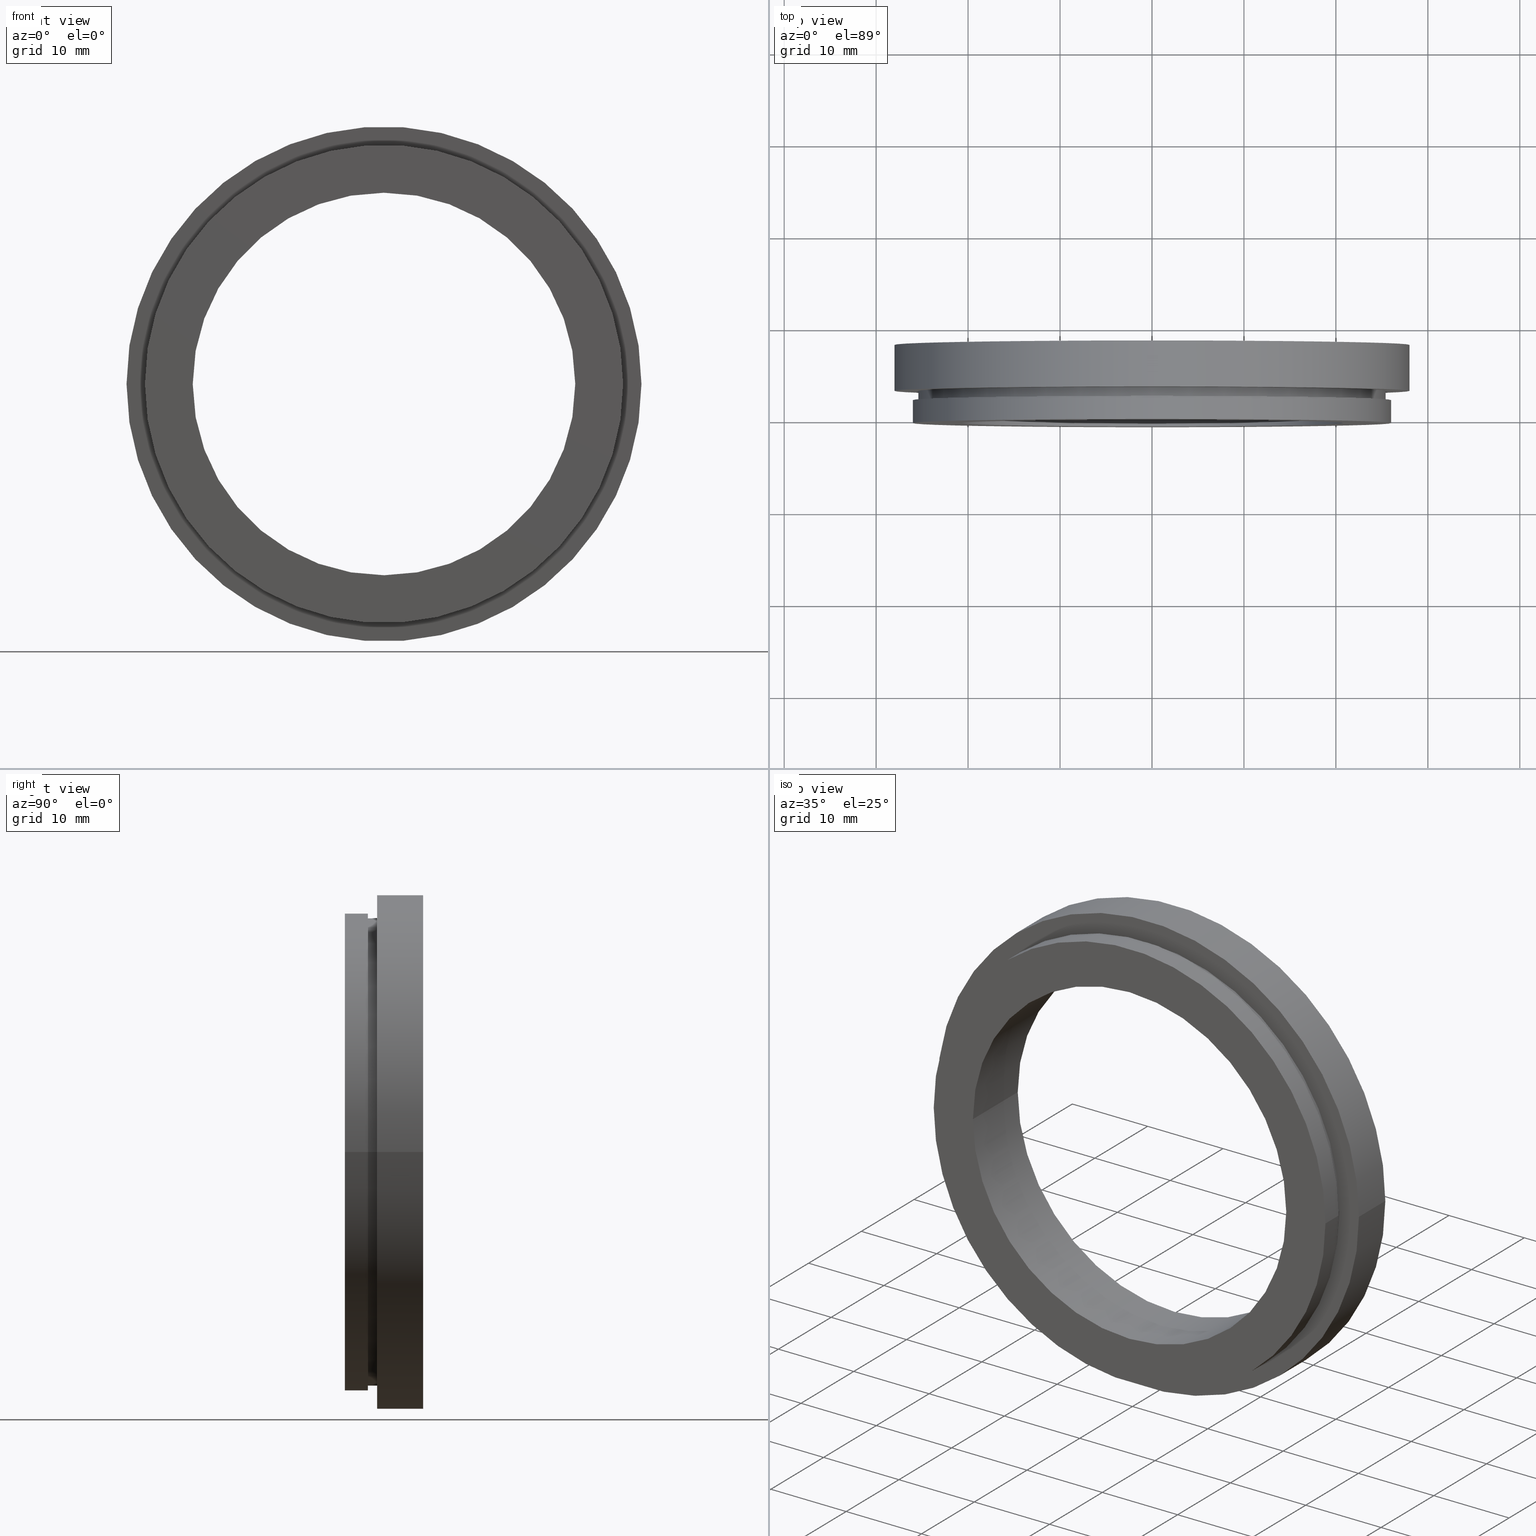
[diagram: canonical four-view strip — front | top / right | iso, engineering-drawing reading convention]
A machine part, canonical four-view strip (front | top / right | iso — engineering-drawing reading convention). The complete STEP part file that produces these views, byte-faithful:
ISO-10303-21;
HEADER;
FILE_DESCRIPTION (( 'STEP AP214' ),
    '1' );
FILE_NAME ('504094.STEP',
    '2019-10-09T01:46:50',
    ( '' ),
    ( '' ),
    'SwSTEP 2.0',
    'SolidWorks 2016',
    '' );
FILE_SCHEMA (( 'AUTOMOTIVE_DESIGN' ));
ENDSEC;

DATA;
#1 = DIRECTION ( 'NONE',  ( -1.000000000000000000, -1.224646799147351000E-016, 0.0000000000000000000 ) ) ;
#2 = CARTESIAN_POINT ( 'NONE',  ( 0.0000000000000000000, 16.88601823708207700, 0.0000000000000000000 ) ) ;
#3 = AXIS2_PLACEMENT_3D ( 'NONE', #124, #378, #228 ) ;
#4 = CARTESIAN_POINT ( 'NONE',  ( -25.99999999999999600, 16.88601823708207300, 0.0000000000000000000 ) ) ;
#5 = ORIENTED_EDGE ( 'NONE', *, *, #10, .F. ) ;
#6 = DIRECTION ( 'NONE',  ( -1.000000000000000000, -1.365923996832131600E-016, 0.0000000000000000000 ) ) ;
#7 = PRODUCT_DEFINITION_FORMATION_WITH_SPECIFIED_SOURCE ( '�κ�', '', #244, .NOT_KNOWN. ) ;
#8 = FILL_AREA_STYLE ('',( #180 ) ) ;
#9 = CARTESIAN_POINT ( 'NONE',  ( 0.0000000000000000000, 16.88601823708207700, 0.0000000000000000000 ) ) ;
#10 = EDGE_CURVE ( 'NONE', #100, #170, #419, .T. ) ;
#11 = CIRCLE ( 'NONE', #91, 25.39999999999999500 ) ;
#12 = FACE_OUTER_BOUND ( 'NONE', #257, .T. ) ;
#13 = FACE_OUTER_BOUND ( 'NONE', #94, .T. ) ;
#14 = CARTESIAN_POINT ( 'NONE',  ( -20.80000000000000100, -0.5454644111196710300, 0.0000000000000000000 ) ) ;
#15 = ORIENTED_EDGE ( 'NONE', *, *, #132, .T. ) ;
#16 = CARTESIAN_POINT ( 'NONE',  ( -25.39999999999999900, 16.88601823708207300, 0.0000000000000000000 ) ) ;
#17 = ADVANCED_FACE ( 'NONE', ( #239, #27 ), #152, .F. ) ;
#18 = ORIENTED_EDGE ( 'NONE', *, *, #326, .T. ) ;
#19 = EDGE_CURVE ( 'NONE', #245, #215, #397, .T. ) ;
#20 = FACE_OUTER_BOUND ( 'NONE', #190, .T. ) ;
#21 = CARTESIAN_POINT ( 'NONE',  ( 1.828579243164447600E-015, 1.954535588880333700, 0.0000000000000000000 ) ) ;
#22 = DIRECTION ( 'NONE',  ( -1.224646799147351000E-016, 1.000000000000000000, -0.0000000000000000000 ) ) ;
#23 = COLOUR_RGB ( '',1.000000000000000000, 1.000000000000000000, 1.000000000000000000 ) ;
#24 = DIRECTION ( 'NONE',  ( -1.224646799147351000E-016, 1.000000000000000000, -0.0000000000000000000 ) ) ;
#25 = DIRECTION ( 'NONE',  ( -1.000000000000000000, -1.334402673828313300E-016, 0.0000000000000000000 ) ) ;
#26 = AXIS2_PLACEMENT_3D ( 'NONE', #61, #223, #315 ) ;
#27 = FACE_OUTER_BOUND ( 'NONE', #302, .T. ) ;
#28 = SURFACE_STYLE_FILL_AREA ( #216 ) ;
#29 = FACE_OUTER_BOUND ( 'NONE', #105, .T. ) ;
#30 = ORIENTED_EDGE ( 'NONE', *, *, #35, .T. ) ;
#31 = PRODUCT_DEFINITION_SHAPE ( 'NONE', 'NONE',  #347 ) ;
#32 = PLANE ( 'NONE',  #395 ) ;
#33 = AXIS2_PLACEMENT_3D ( 'NONE', #324, #289, #322 ) ;
#34 = DIRECTION ( 'NONE',  ( -1.224646799147351000E-016, 1.000000000000000000, -0.0000000000000000000 ) ) ;
#35 = EDGE_CURVE ( 'NONE', #170, #189, #361, .T. ) ;
#36 = CARTESIAN_POINT ( 'NONE',  ( 1.706114563249712100E-015, 2.954535588880334600, 0.0000000000000000000 ) ) ;
#37 = PRESENTATION_LAYER_ASSIGNMENT (  '', '', ( #117 ) ) ;
#38 = ORIENTED_EDGE ( 'NONE', *, *, #264, .F. ) ;
#39 = FILL_AREA_STYLE ('',( #368 ) ) ;
#40 = COLOUR_RGB ( '',1.000000000000000000, 1.000000000000000000, 1.000000000000000000 ) ;
#41 = DIRECTION ( 'NONE',  ( -1.224646799147351000E-016, 1.000000000000000000, -0.0000000000000000000 ) ) ;
#42 = STYLED_ITEM ( 'NONE', ( #83 ), #275 ) ;
#43 = SURFACE_STYLE_USAGE ( .BOTH. , #243 ) ;
#44 = UNCERTAINTY_MEASURE_WITH_UNIT (LENGTH_MEASURE( 1.000000000000000100E-005 ), #220, 'distance_accuracy_value', 'NONE');
#45 = CIRCLE ( 'NONE', #119, 25.99999999999999600 ) ;
#46 = CARTESIAN_POINT ( 'NONE',  ( -25.99999999999999300, -0.5454644111196717000, 0.0000000000000000000 ) ) ;
#47 = VERTEX_POINT ( 'NONE', #191 ) ;
#48 = ADVANCED_FACE ( 'NONE', ( #12 ), #271, .T. ) ;
#49 = DIRECTION ( 'NONE',  ( -1.224646799147351000E-016, 1.000000000000000000, -0.0000000000000000000 ) ) ;
#50 =( GEOMETRIC_REPRESENTATION_CONTEXT ( 3 ) GLOBAL_UNCERTAINTY_ASSIGNED_CONTEXT ( ( #158 ) ) GLOBAL_UNIT_ASSIGNED_CONTEXT ( ( #398, #175, #365 ) ) REPRESENTATION_CONTEXT ( 'NONE', 'WORKASPACE' ) );
#51 = EDGE_LOOP ( 'NONE', ( #149, #413, #120, #258 ) ) ;
#52 = EDGE_CURVE ( 'NONE', #115, #164, #133, .T. ) ;
#53 = ORIENTED_EDGE ( 'NONE', *, *, #218, .F. ) ;
#54 = CARTESIAN_POINT ( 'NONE',  ( 0.0000000000000000000, 0.0000000000000000000, 0.0000000000000000000 ) ) ;
#55 = AXIS2_PLACEMENT_3D ( 'NONE', #2, #206, #401 ) ;
#56 = DIRECTION ( 'NONE',  ( 1.000000000000000000, 1.224646799147351000E-016, 0.0000000000000000000 ) ) ;
#57 = CIRCLE ( 'NONE', #187, 20.80000000000000400 ) ;
#58 = DIRECTION ( 'NONE',  ( -1.224646799147351000E-016, 1.000000000000000000, -0.0000000000000000000 ) ) ;
#59 = PRESENTATION_LAYER_ASSIGNMENT (  '', '', ( #392 ) ) ;
#60 = DIRECTION ( 'NONE',  ( -1.000000000000000000, -1.195183497228115300E-016, 0.0000000000000000000 ) ) ;
#61 = CARTESIAN_POINT ( 'NONE',  ( 20.80000000000000400, -0.5454644111196637100, 0.0000000000000000000 ) ) ;
#62 = PLANE ( 'NONE',  #334 ) ;
#63 = EDGE_LOOP ( 'NONE', ( #267, #15 ) ) ;
#64 = ORIENTED_EDGE ( 'NONE', *, *, #396, .F. ) ;
#65 = EDGE_CURVE ( 'NONE', #215, #245, #163, .T. ) ;
#66 = MECHANICAL_DESIGN_GEOMETRIC_PRESENTATION_REPRESENTATION (  '', ( #238 ), #50 ) ;
#67 = VECTOR ( 'NONE', #177, 1000.000000000000000 ) ;
#68 = FILL_AREA_STYLE_COLOUR ( '', #319 ) ;
#69 = CIRCLE ( 'NONE', #281, 25.39999999999999900 ) ;
#70 = ORIENTED_EDGE ( 'NONE', *, *, #65, .T. ) ;
#71 = CARTESIAN_POINT ( 'NONE',  ( 25.39999999999999900, 2.954535588880337700, 3.110602869834276900E-015 ) ) ;
#72 = STYLED_ITEM ( 'NONE', ( #171 ), #407 ) ;
#73 = EDGE_LOOP ( 'NONE', ( #121, #336, #399, #332 ) ) ;
#74 = CARTESIAN_POINT ( 'NONE',  ( 1.093791163676036800E-015, 7.954535588880335500, 0.0000000000000000000 ) ) ;
#75 = ORIENTED_EDGE ( 'NONE', *, *, #147, .F. ) ;
#76 = SURFACE_SIDE_STYLE ('',( #362 ) ) ;
#77 = EDGE_CURVE ( 'NONE', #434, #47, #233, .T. ) ;
#78 = CARTESIAN_POINT ( 'NONE',  ( 1.706114563249712100E-015, 2.954535588880334600, 0.0000000000000000000 ) ) ;
#79 = UNCERTAINTY_MEASURE_WITH_UNIT (LENGTH_MEASURE( 1.000000000000000100E-005 ), #375, 'distance_accuracy_value', 'NONE');
#80 = ORIENTED_EDGE ( 'NONE', *, *, #414, .F. ) ;
#81 = ORIENTED_EDGE ( 'NONE', *, *, #197, .F. ) ;
#82 =( NAMED_UNIT ( * ) SI_UNIT ( $, .STERADIAN. ) SOLID_ANGLE_UNIT ( ) );
#83 = PRESENTATION_STYLE_ASSIGNMENT (( #305 ) ) ;
#84 = SURFACE_SIDE_STYLE ('',( #195 ) ) ;
#85 = AXIS2_PLACEMENT_3D ( 'NONE', #424, #24, #139 ) ;
#86 = AXIS2_PLACEMENT_3D ( 'NONE', #263, #425, #143 ) ;
#87 =( NAMED_UNIT ( * ) PLANE_ANGLE_UNIT ( ) SI_UNIT ( $, .RADIAN. ) );
#88 = VECTOR ( 'NONE', #380, 1000.000000000000000 ) ;
#89 = ADVANCED_FACE ( 'NONE', ( #388, #373 ), #230, .F. ) ;
#90 = APPLICATION_PROTOCOL_DEFINITION ( 'draft international standard', 'automotive_design', 1998, #411 ) ;
#91 = AXIS2_PLACEMENT_3D ( 'NONE', #155, #49, #343 ) ;
#92 = CARTESIAN_POINT ( 'NONE',  ( 2.134740942951285500E-015, -0.5454644111196684800, 0.0000000000000000000 ) ) ;
#93 = DIRECTION ( 'NONE',  ( -1.000000000000000000, -1.239088197126290600E-016, 0.0000000000000000000 ) ) ;
#94 = EDGE_LOOP ( 'NONE', ( #341, #262, #227, #75 ) ) ;
#95 = EDGE_CURVE ( 'NONE', #96, #164, #311, .T. ) ;
#96 = VERTEX_POINT ( 'NONE', #321 ) ;
#97 = CARTESIAN_POINT ( 'NONE',  ( 0.0000000000000000000, 16.88601823708207700, 0.0000000000000000000 ) ) ;
#98 = DIRECTION ( 'NONE',  ( -1.224646799147351000E-016, 1.000000000000000000, -0.0000000000000000000 ) ) ;
#99 = FACE_OUTER_BOUND ( 'NONE', #73, .T. ) ;
#100 = VERTEX_POINT ( 'NONE', #193 ) ;
#101 =( GEOMETRIC_REPRESENTATION_CONTEXT ( 3 ) GLOBAL_UNCERTAINTY_ASSIGNED_CONTEXT ( ( #44 ) ) GLOBAL_UNIT_ASSIGNED_CONTEXT ( ( #220, #252, #279 ) ) REPRESENTATION_CONTEXT ( 'NONE', 'WORKASPACE' ) );
#102 = DIRECTION ( 'NONE',  ( -1.000000000000000000, -1.167602339599774200E-016, 0.0000000000000000000 ) ) ;
#103 = DIRECTION ( 'NONE',  ( -1.000000000000000000, -1.195183497228115300E-016, 0.0000000000000000000 ) ) ;
#104 = ORIENTED_EDGE ( 'NONE', *, *, #95, .F. ) ;
#105 = EDGE_LOOP ( 'NONE', ( #70, #207 ) ) ;
#106 = PRODUCT_RELATED_PRODUCT_CATEGORY ( 'part', '', ( #244 ) ) ;
#107 = CARTESIAN_POINT ( 'NONE',  ( 2.134740942951285500E-015, -0.5454644111196684800, 0.0000000000000000000 ) ) ;
#108 = EDGE_CURVE ( 'NONE', #325, #245, #285, .T. ) ;
#109 = CYLINDRICAL_SURFACE ( 'NONE', #253, 25.39999999999999900 ) ;
#110 = FILL_AREA_STYLE ('',( #68 ) ) ;
#111 = VERTEX_POINT ( 'NONE', #125 ) ;
#112 = ORIENTED_EDGE ( 'NONE', *, *, #153, .T. ) ;
#113 = CARTESIAN_POINT ( 'NONE',  ( 28.00000000000001100, 2.954535588880338200, 3.429011037612590100E-015 ) ) ;
#114 = DIRECTION ( 'NONE',  ( -1.224646799147351000E-016, 1.000000000000000000, -0.0000000000000000000 ) ) ;
#115 = VERTEX_POINT ( 'NONE', #418 ) ;
#116 = FILL_AREA_STYLE_COLOUR ( '', #432 ) ;
#117 = STYLED_ITEM ( 'NONE', ( #316 ), #318 ) ;
#118 = COLOUR_RGB ( '',1.000000000000000000, 1.000000000000000000, 1.000000000000000000 ) ;
#119 = AXIS2_PLACEMENT_3D ( 'NONE', #337, #232, #102 ) ;
#120 = ORIENTED_EDGE ( 'NONE', *, *, #129, .T. ) ;
#121 = ORIENTED_EDGE ( 'NONE', *, *, #108, .F. ) ;
#122 = LINE ( 'NONE', #386, #431 ) ;
#123 =( GEOMETRIC_REPRESENTATION_CONTEXT ( 3 ) GLOBAL_UNCERTAINTY_ASSIGNED_CONTEXT ( ( #198 ) ) GLOBAL_UNIT_ASSIGNED_CONTEXT ( ( #363, #211, #82 ) ) REPRESENTATION_CONTEXT ( 'NONE', 'WORKASPACE' ) );
#124 = CARTESIAN_POINT ( 'NONE',  ( 1.093791163676037000E-015, 7.954535588880333700, 0.0000000000000000000 ) ) ;
#125 = CARTESIAN_POINT ( 'NONE',  ( 20.80000000000000400, 7.954535588880337300, 2.547265342226494900E-015 ) ) ;
#126 = VECTOR ( 'NONE', #137, 1000.000000000000000 ) ;
#127 = EDGE_LOOP ( 'NONE', ( #112, #301, #104, #194 ) ) ;
#128 = FACE_OUTER_BOUND ( 'NONE', #412, .T. ) ;
#129 = EDGE_CURVE ( 'NONE', #111, #47, #405, .T. ) ;
#130 = DIRECTION ( 'NONE',  ( 1.000000000000000000, 1.224646799147351000E-016, 0.0000000000000000000 ) ) ;
#131 = CARTESIAN_POINT ( 'NONE',  ( -25.39999999999999900, 2.954535588880331500, 0.0000000000000000000 ) ) ;
#132 = EDGE_CURVE ( 'NONE', #240, #189, #214, .T. ) ;
#133 = LINE ( 'NONE', #350, #88 ) ;
#134 = AXIS2_PLACEMENT_3D ( 'NONE', #283, #250, #282 ) ;
#135 = CIRCLE ( 'NONE', #86, 20.80000000000000400 ) ;
#136 = FACE_OUTER_BOUND ( 'NONE', #209, .T. ) ;
#137 = DIRECTION ( 'NONE',  ( -1.224646799147351000E-016, 1.000000000000000000, -0.0000000000000000000 ) ) ;
#138 = MECHANICAL_DESIGN_GEOMETRIC_PRESENTATION_REPRESENTATION (  '', ( #42 ), #123 ) ;
#139 = DIRECTION ( 'NONE',  ( -1.000000000000000000, -1.668003342285391100E-016, 0.0000000000000000000 ) ) ;
#140 = VECTOR ( 'NONE', #22, 1000.000000000000000 ) ;
#141 = DIRECTION ( 'NONE',  ( -1.224646799147351000E-016, 1.000000000000000000, -0.0000000000000000000 ) ) ;
#142 = AXIS2_PLACEMENT_3D ( 'NONE', #107, #34, #268 ) ;
#143 = DIRECTION ( 'NONE',  ( -1.000000000000000000, -1.198877402267624800E-016, 0.0000000000000000000 ) ) ;
#144 = CIRCLE ( 'NONE', #349, 25.99999999999999600 ) ;
#145 = DIRECTION ( 'NONE',  ( -1.224646799147351000E-016, 1.000000000000000000, -0.0000000000000000000 ) ) ;
#146 = DIRECTION ( 'NONE',  ( -1.224646799147351000E-016, 1.000000000000000000, -0.0000000000000000000 ) ) ;
#147 = EDGE_CURVE ( 'NONE', #164, #96, #45, .T. ) ;
#148 =( NAMED_UNIT ( * ) SI_UNIT ( $, .STERADIAN. ) SOLID_ANGLE_UNIT ( ) );
#149 = ORIENTED_EDGE ( 'NONE', *, *, #159, .F. ) ;
#150 = ORIENTED_EDGE ( 'NONE', *, *, #153, .F. ) ;
#151 = PRODUCT_CONTEXT ( 'NONE', #411, 'mechanical' ) ;
#152 = PLANE ( 'NONE',  #369 ) ;
#153 = EDGE_CURVE ( 'NONE', #381, #115, #144, .T. ) ;
#154 = CYLINDRICAL_SURFACE ( 'NONE', #85, 20.80000000000000400 ) ;
#155 = CARTESIAN_POINT ( 'NONE',  ( 1.828579243164447600E-015, 1.954535588880333700, 0.0000000000000000000 ) ) ;
#156 = CARTESIAN_POINT ( 'NONE',  ( 28.00000000000000400, 16.88601823708208000, 3.429011037612589700E-015 ) ) ;
#157 = CARTESIAN_POINT ( 'NONE',  ( 26.00000000000000000, 1.954535588880336600, 3.184081677783117800E-015 ) ) ;
#158 = UNCERTAINTY_MEASURE_WITH_UNIT (LENGTH_MEASURE( 1.000000000000000100E-005 ), #398, 'distance_accuracy_value', 'NONE');
#159 = EDGE_CURVE ( 'NONE', #406, #434, #379, .T. ) ;
#160 = FACE_OUTER_BOUND ( 'NONE', #127, .T. ) ;
#161 = CARTESIAN_POINT ( 'NONE',  ( 1.706114563249712100E-015, 2.954535588880334600, 0.0000000000000000000 ) ) ;
#162 = DIRECTION ( 'NONE',  ( -1.224646799147351000E-016, 1.000000000000000000, -0.0000000000000000000 ) ) ;
#163 = CIRCLE ( 'NONE', #3, 28.00000000000000000 ) ;
#164 = VERTEX_POINT ( 'NONE', #157 ) ;
#165 = CARTESIAN_POINT ( 'NONE',  ( 1.706114563249712100E-015, 2.954535588880334600, 0.0000000000000000000 ) ) ;
#166 = UNCERTAINTY_MEASURE_WITH_UNIT (LENGTH_MEASURE( 1.000000000000000100E-005 ), #181, 'distance_accuracy_value', 'NONE');
#167 = DIRECTION ( 'NONE',  ( 1.224646799147351000E-016, -1.000000000000000000, 0.0000000000000000000 ) ) ;
#168 =( NAMED_UNIT ( * ) PLANE_ANGLE_UNIT ( ) SI_UNIT ( $, .RADIAN. ) );
#169 = VERTEX_POINT ( 'NONE', #384 ) ;
#170 = VERTEX_POINT ( 'NONE', #200 ) ;
#171 = PRESENTATION_STYLE_ASSIGNMENT (( #43 ) ) ;
#172 = EDGE_LOOP ( 'NONE', ( #80, #5 ) ) ;
#173 = DIRECTION ( 'NONE',  ( -1.224646799147351000E-016, 1.000000000000000000, -0.0000000000000000000 ) ) ;
#174 = STYLED_ITEM ( 'NONE', ( #226 ), #256 ) ;
#175 =( NAMED_UNIT ( * ) PLANE_ANGLE_UNIT ( ) SI_UNIT ( $, .RADIAN. ) );
#176 = PRESENTATION_STYLE_ASSIGNMENT (( #346 ) ) ;
#177 = DIRECTION ( 'NONE',  ( -1.224646799147351000E-016, 1.000000000000000000, -0.0000000000000000000 ) ) ;
#178 = FILL_AREA_STYLE ('',( #241 ) ) ;
#179 = EDGE_LOOP ( 'NONE', ( #251, #327 ) ) ;
#180 = FILL_AREA_STYLE_COLOUR ( '', #278 ) ;
#181 =( LENGTH_UNIT ( ) NAMED_UNIT ( * ) SI_UNIT ( .MILLI., .METRE. ) );
#182 = VECTOR ( 'NONE', #145, 1000.000000000000000 ) ;
#183 = CARTESIAN_POINT ( 'NONE',  ( 0.0000000000000000000, 16.88601823708207700, 0.0000000000000000000 ) ) ;
#184 = ORIENTED_EDGE ( 'NONE', *, *, #247, .T. ) ;
#185 =( NAMED_UNIT ( * ) PLANE_ANGLE_UNIT ( ) SI_UNIT ( $, .RADIAN. ) );
#186 = CARTESIAN_POINT ( 'NONE',  ( 25.39999999999999900, 1.954535588880337100, 0.0000000000000000000 ) ) ;
#187 = AXIS2_PLACEMENT_3D ( 'NONE', #74, #390, #299 ) ;
#188 = CARTESIAN_POINT ( 'NONE',  ( -20.80000000000000400, 16.88601823708207300, 0.0000000000000000000 ) ) ;
#189 = VERTEX_POINT ( 'NONE', #131 ) ;
#190 = EDGE_LOOP ( 'NONE', ( #64, #359, #357, #184 ) ) ;
#191 = CARTESIAN_POINT ( 'NONE',  ( -20.80000000000000400, 7.954535588880333700, 0.0000000000000000000 ) ) ;
#192 = ADVANCED_FACE ( 'NONE', ( #136, #394 ), #62, .F. ) ;
#193 = CARTESIAN_POINT ( 'NONE',  ( 25.39999999999999900, 1.954535588880336600, 3.110602869834276900E-015 ) ) ;
#194 = ORIENTED_EDGE ( 'NONE', *, *, #300, .F. ) ;
#195 = SURFACE_STYLE_FILL_AREA ( #8 ) ;
#196 = FILL_AREA_STYLE_COLOUR ( '', #40 ) ;
#197 = EDGE_CURVE ( 'NONE', #189, #240, #69, .T. ) ;
#198 = UNCERTAINTY_MEASURE_WITH_UNIT (LENGTH_MEASURE( 1.000000000000000100E-005 ), #363, 'distance_accuracy_value', 'NONE');
#199 = CARTESIAN_POINT ( 'NONE',  ( 0.0000000000000000000, 16.88601823708207700, 0.0000000000000000000 ) ) ;
#200 = CARTESIAN_POINT ( 'NONE',  ( -25.39999999999999100, 1.954535588880330600, 0.0000000000000000000 ) ) ;
#201 = ORIENTED_EDGE ( 'NONE', *, *, #108, .T. ) ;
#202 = CARTESIAN_POINT ( 'NONE',  ( 28.00000000000000000, 7.954535588880337300, 3.429011037612589300E-015 ) ) ;
#203 = ORIENTED_EDGE ( 'NONE', *, *, #387, .F. ) ;
#204 = DIRECTION ( 'NONE',  ( -1.224646799147351000E-016, 1.000000000000000000, -0.0000000000000000000 ) ) ;
#205 = LINE ( 'NONE', #338, #182 ) ;
#206 = DIRECTION ( 'NONE',  ( -1.224646799147351000E-016, 1.000000000000000000, -0.0000000000000000000 ) ) ;
#207 = ORIENTED_EDGE ( 'NONE', *, *, #19, .T. ) ;
#208 = SURFACE_STYLE_USAGE ( .BOTH. , #76 ) ;
#209 = EDGE_LOOP ( 'NONE', ( #272, #203 ) ) ;
#210 =( LENGTH_UNIT ( ) NAMED_UNIT ( * ) SI_UNIT ( .MILLI., .METRE. ) );
#211 =( NAMED_UNIT ( * ) PLANE_ANGLE_UNIT ( ) SI_UNIT ( $, .RADIAN. ) );
#212 = CYLINDRICAL_SURFACE ( 'NONE', #366, 20.80000000000000400 ) ;
#213 = DIRECTION ( 'NONE',  ( -1.224646799147351000E-016, 1.000000000000000000, -0.0000000000000000000 ) ) ;
#214 = CIRCLE ( 'NONE', #333, 25.39999999999999900 ) ;
#215 = VERTEX_POINT ( 'NONE', #329 ) ;
#216 = FILL_AREA_STYLE ('',( #116 ) ) ;
#217 =( GEOMETRIC_REPRESENTATION_CONTEXT ( 3 ) GLOBAL_UNCERTAINTY_ASSIGNED_CONTEXT ( ( #166 ) ) GLOBAL_UNIT_ASSIGNED_CONTEXT ( ( #181, #185, #148 ) ) REPRESENTATION_CONTEXT ( 'NONE', 'WORKASPACE' ) );
#218 = EDGE_CURVE ( 'NONE', #169, #215, #296, .T. ) ;
#219 = APPLICATION_CONTEXT ( 'automotive_design' ) ;
#220 =( LENGTH_UNIT ( ) NAMED_UNIT ( * ) SI_UNIT ( .MILLI., .METRE. ) );
#221 = EDGE_LOOP ( 'NONE', ( #430, #364 ) ) ;
#222 = DIRECTION ( 'NONE',  ( -1.000000000000000000, -1.195183497228115300E-016, 0.0000000000000000000 ) ) ;
#223 = DIRECTION ( 'NONE',  ( -1.224646799147351000E-016, 1.000000000000000000, 0.0000000000000000000 ) ) ;
#224 = CIRCLE ( 'NONE', #330, 25.99999999999999600 ) ;
#225 = DIRECTION ( 'NONE',  ( -1.224646799147351000E-016, 1.000000000000000000, -0.0000000000000000000 ) ) ;
#226 = PRESENTATION_STYLE_ASSIGNMENT (( #335 ) ) ;
#227 = ORIENTED_EDGE ( 'NONE', *, *, #300, .T. ) ;
#228 = DIRECTION ( 'NONE',  ( -1.000000000000000000, -1.239088197126290800E-016, 0.0000000000000000000 ) ) ;
#229 = PRODUCT_DEFINITION_CONTEXT ( 'detailed design', #219, 'design' ) ;
#230 = PLANE ( 'NONE',  #26 ) ;
#231 = UNCERTAINTY_MEASURE_WITH_UNIT (LENGTH_MEASURE( 1.000000000000000100E-005 ), #210, 'distance_accuracy_value', 'NONE');
#232 = DIRECTION ( 'NONE',  ( -1.224646799147351000E-016, 1.000000000000000000, -0.0000000000000000000 ) ) ;
#233 = LINE ( 'NONE', #188, #140 ) ;
#234 = EDGE_LOOP ( 'NONE', ( #150, #351 ) ) ;
#235 = DIRECTION ( 'NONE',  ( -1.224646799147351000E-016, 1.000000000000000000, -0.0000000000000000000 ) ) ;
#236 = FACE_BOUND ( 'NONE', #221, .T. ) ;
#237 = ORIENTED_EDGE ( 'NONE', *, *, #414, .T. ) ;
#238 = STYLED_ITEM ( 'NONE', ( #353 ), #312 ) ;
#239 = FACE_BOUND ( 'NONE', #172, .T. ) ;
#240 = VERTEX_POINT ( 'NONE', #71 ) ;
#241 = FILL_AREA_STYLE_COLOUR ( '', #118 ) ;
#242 = AXIS2_PLACEMENT_3D ( 'NONE', #342, #213, #6 ) ;
#243 = SURFACE_SIDE_STYLE ('',( #393 ) ) ;
#244 = PRODUCT ( '504094', '504094', '', ( #151 ) ) ;
#245 = VERTEX_POINT ( 'NONE', #202 ) ;
#246 =( NAMED_UNIT ( * ) PLANE_ANGLE_UNIT ( ) SI_UNIT ( $, .RADIAN. ) );
#247 = EDGE_CURVE ( 'NONE', #47, #111, #57, .T. ) ;
#248 = ORIENTED_EDGE ( 'NONE', *, *, #95, .T. ) ;
#249 = ADVANCED_FACE ( 'NONE', ( #236, #29 ), #32, .F. ) ;
#250 = DIRECTION ( 'NONE',  ( -1.224646799147351000E-016, 1.000000000000000000, -0.0000000000000000000 ) ) ;
#251 = ORIENTED_EDGE ( 'NONE', *, *, #266, .T. ) ;
#252 =( NAMED_UNIT ( * ) PLANE_ANGLE_UNIT ( ) SI_UNIT ( $, .RADIAN. ) );
#253 = AXIS2_PLACEMENT_3D ( 'NONE', #9, #141, #274 ) ;
#254 = DIRECTION ( 'NONE',  ( -1.000000000000000000, -1.209302423156908900E-016, 0.0000000000000000000 ) ) ;
#255 = DIRECTION ( 'NONE',  ( -1.224646799147351000E-016, 1.000000000000000000, -0.0000000000000000000 ) ) ;
#256 = ADVANCED_FACE ( 'NONE', ( #160 ), #367, .T. ) ;
#257 = EDGE_LOOP ( 'NONE', ( #18, #201, #286, #53 ) ) ;
#258 = ORIENTED_EDGE ( 'NONE', *, *, #77, .F. ) ;
#259 = SURFACE_STYLE_FILL_AREA ( #340 ) ;
#260 = CARTESIAN_POINT ( 'NONE',  ( 1.093791163676036800E-015, 7.954535588880335500, 0.0000000000000000000 ) ) ;
#261 =( GEOMETRIC_REPRESENTATION_CONTEXT ( 3 ) GLOBAL_UNCERTAINTY_ASSIGNED_CONTEXT ( ( #231 ) ) GLOBAL_UNIT_ASSIGNED_CONTEXT ( ( #210, #246, #307 ) ) REPRESENTATION_CONTEXT ( 'NONE', 'WORKASPACE' ) );
#262 = ORIENTED_EDGE ( 'NONE', *, *, #429, .T. ) ;
#263 = CARTESIAN_POINT ( 'NONE',  ( 2.134740942951285500E-015, -0.5454644111196684800, 0.0000000000000000000 ) ) ;
#264 = EDGE_CURVE ( 'NONE', #100, #240, #122, .T. ) ;
#265 = EDGE_LOOP ( 'NONE', ( #237, #339, #81, #389 ) ) ;
#266 = EDGE_CURVE ( 'NONE', #434, #406, #135, .T. ) ;
#267 = ORIENTED_EDGE ( 'NONE', *, *, #197, .T. ) ;
#268 = DIRECTION ( 'NONE',  ( -1.000000000000000000, -1.198877402267624800E-016, 0.0000000000000000000 ) ) ;
#269 = CARTESIAN_POINT ( 'NONE',  ( 20.80000000000000400, 7.954535588880337300, 0.0000000000000000000 ) ) ;
#270 = SURFACE_STYLE_USAGE ( .BOTH. , #84 ) ;
#271 = CYLINDRICAL_SURFACE ( 'NONE', #295, 28.00000000000000400 ) ;
#272 = ORIENTED_EDGE ( 'NONE', *, *, #326, .F. ) ;
#273 = DIRECTION ( 'NONE',  ( -1.000000000000000000, -1.239088197126290600E-016, 0.0000000000000000000 ) ) ;
#274 = DIRECTION ( 'NONE',  ( -1.000000000000000000, -1.365923996832131600E-016, 0.0000000000000000000 ) ) ;
#275 = ADVANCED_FACE ( 'NONE', ( #20 ), #154, .F. ) ;
#276 = AXIS2_PLACEMENT_3D ( 'NONE', #199, #173, #25 ) ;
#277 = VECTOR ( 'NONE', #58, 1000.000000000000000 ) ;
#278 = COLOUR_RGB ( '',1.000000000000000000, 1.000000000000000000, 1.000000000000000000 ) ;
#279 =( NAMED_UNIT ( * ) SI_UNIT ( $, .STERADIAN. ) SOLID_ANGLE_UNIT ( ) );
#280 = ADVANCED_FACE ( 'NONE', ( #290 ), #400, .T. ) ;
#281 = AXIS2_PLACEMENT_3D ( 'NONE', #165, #235, #103 ) ;
#282 = DIRECTION ( 'NONE',  ( -1.000000000000000000, -1.239088197126290600E-016, 0.0000000000000000000 ) ) ;
#283 = CARTESIAN_POINT ( 'NONE',  ( 0.0000000000000000000, 16.88601823708207700, 0.0000000000000000000 ) ) ;
#284 = ADVANCED_BREP_SHAPE_REPRESENTATION ( '504094', ( #312, #383 ), #101 ) ;
#285 = LINE ( 'NONE', #156, #331 ) ;
#286 = ORIENTED_EDGE ( 'NONE', *, *, #65, .F. ) ;
#287 = PRESENTATION_LAYER_ASSIGNMENT (  '', '', ( #42 ) ) ;
#288 = DIRECTION ( 'NONE',  ( -1.000000000000000000, -8.340016711426955300E-017, 0.0000000000000000000 ) ) ;
#289 = DIRECTION ( 'NONE',  ( -1.224646799147351000E-016, 1.000000000000000000, -0.0000000000000000000 ) ) ;
#290 = FACE_OUTER_BOUND ( 'NONE', #265, .T. ) ;
#291 = CIRCLE ( 'NONE', #310, 28.00000000000000700 ) ;
#292 = DIRECTION ( 'NONE',  ( -1.000000000000000000, -1.209302423156908900E-016, 0.0000000000000000000 ) ) ;
#293 = ORIENTED_EDGE ( 'NONE', *, *, #147, .T. ) ;
#294 =( LENGTH_UNIT ( ) NAMED_UNIT ( * ) SI_UNIT ( .MILLI., .METRE. ) );
#295 = AXIS2_PLACEMENT_3D ( 'NONE', #97, #98, #93 ) ;
#296 = LINE ( 'NONE', #391, #126 ) ;
#297 = PRESENTATION_LAYER_ASSIGNMENT (  '', '', ( #72 ) ) ;
#298 = CIRCLE ( 'NONE', #304, 28.00000000000000700 ) ;
#299 = DIRECTION ( 'NONE',  ( -1.000000000000000000, -8.340016711426955300E-017, 0.0000000000000000000 ) ) ;
#300 = EDGE_CURVE ( 'NONE', #381, #96, #328, .T. ) ;
#301 = ORIENTED_EDGE ( 'NONE', *, *, #52, .T. ) ;
#302 = EDGE_LOOP ( 'NONE', ( #248, #293 ) ) ;
#303 = CARTESIAN_POINT ( 'NONE',  ( 20.80000000000000400, -0.5454644111196660400, 2.547265342226494900E-015 ) ) ;
#304 = AXIS2_PLACEMENT_3D ( 'NONE', #78, #114, #403 ) ;
#305 = SURFACE_STYLE_USAGE ( .BOTH. , #408 ) ;
#306 = SURFACE_STYLE_FILL_AREA ( #110 ) ;
#307 =( NAMED_UNIT ( * ) SI_UNIT ( $, .STERADIAN. ) SOLID_ANGLE_UNIT ( ) );
#308 = ADVANCED_FACE ( 'NONE', ( #128 ), #109, .T. ) ;
#309 =( NAMED_UNIT ( * ) SI_UNIT ( $, .STERADIAN. ) SOLID_ANGLE_UNIT ( ) );
#310 = AXIS2_PLACEMENT_3D ( 'NONE', #36, #41, #273 ) ;
#311 = CIRCLE ( 'NONE', #33, 25.99999999999999600 ) ;
#312 = MANIFOLD_SOLID_BREP ( '��ת1', #313 ) ;
#313 = CLOSED_SHELL ( 'NONE', ( #256, #280, #48, #407, #89, #275, #249, #410, #192, #308, #17, #318 ) ) ;
#314 = SURFACE_SIDE_STYLE ('',( #28 ) ) ;
#315 = DIRECTION ( 'NONE',  ( -1.000000000000000000, -1.224646799147351000E-016, 0.0000000000000000000 ) ) ;
#316 = PRESENTATION_STYLE_ASSIGNMENT (( #270 ) ) ;
#317 = DIRECTION ( 'NONE',  ( 1.224646799147351000E-016, -1.000000000000000000, 0.0000000000000000000 ) ) ;
#318 = ADVANCED_FACE ( 'NONE', ( #13 ), #385, .T. ) ;
#319 = COLOUR_RGB ( '',1.000000000000000000, 1.000000000000000000, 1.000000000000000000 ) ;
#320 = ORIENTED_EDGE ( 'NONE', *, *, #10, .T. ) ;
#321 = CARTESIAN_POINT ( 'NONE',  ( -25.99999999999999300, 1.954535588880330600, 0.0000000000000000000 ) ) ;
#322 = DIRECTION ( 'NONE',  ( -1.000000000000000000, -1.167602339599774200E-016, 0.0000000000000000000 ) ) ;
#323 = MECHANICAL_DESIGN_GEOMETRIC_PRESENTATION_REPRESENTATION (  '', ( #117 ), #261 ) ;
#324 = CARTESIAN_POINT ( 'NONE',  ( 1.828579243164447600E-015, 1.954535588880333700, 0.0000000000000000000 ) ) ;
#325 = VERTEX_POINT ( 'NONE', #113 ) ;
#326 = EDGE_CURVE ( 'NONE', #169, #325, #298, .T. ) ;
#327 = ORIENTED_EDGE ( 'NONE', *, *, #159, .T. ) ;
#328 = LINE ( 'NONE', #4, #67 ) ;
#329 = CARTESIAN_POINT ( 'NONE',  ( -28.00000000000000000, 7.954535588880330200, 0.0000000000000000000 ) ) ;
#330 = AXIS2_PLACEMENT_3D ( 'NONE', #92, #415, #254 ) ;
#331 = VECTOR ( 'NONE', #255, 1000.000000000000000 ) ;
#332 = ORIENTED_EDGE ( 'NONE', *, *, #19, .F. ) ;
#333 = AXIS2_PLACEMENT_3D ( 'NONE', #161, #225, #60 ) ;
#334 = AXIS2_PLACEMENT_3D ( 'NONE', #356, #355, #1 ) ;
#335 = SURFACE_STYLE_USAGE ( .BOTH. , #427 ) ;
#336 = ORIENTED_EDGE ( 'NONE', *, *, #387, .T. ) ;
#337 = CARTESIAN_POINT ( 'NONE',  ( 1.828579243164447600E-015, 1.954535588880333700, 0.0000000000000000000 ) ) ;
#338 = CARTESIAN_POINT ( 'NONE',  ( 20.80000000000000400, 16.88601823708208000, 2.547265342226494900E-015 ) ) ;
#339 = ORIENTED_EDGE ( 'NONE', *, *, #264, .T. ) ;
#340 = FILL_AREA_STYLE ('',( #196 ) ) ;
#341 = ORIENTED_EDGE ( 'NONE', *, *, #52, .F. ) ;
#342 = CARTESIAN_POINT ( 'NONE',  ( 0.0000000000000000000, 16.88601823708207700, 0.0000000000000000000 ) ) ;
#343 = DIRECTION ( 'NONE',  ( -1.000000000000000000, -1.195183497228115300E-016, 0.0000000000000000000 ) ) ;
#344 =( GEOMETRIC_REPRESENTATION_CONTEXT ( 3 ) GLOBAL_UNCERTAINTY_ASSIGNED_CONTEXT ( ( #79 ) ) GLOBAL_UNIT_ASSIGNED_CONTEXT ( ( #375, #87, #309 ) ) REPRESENTATION_CONTEXT ( 'NONE', 'WORKASPACE' ) );
#345 = DIRECTION ( 'NONE',  ( 1.000000000000000000, 0.0000000000000000000, 0.0000000000000000000 ) ) ;
#346 = SURFACE_STYLE_USAGE ( .BOTH. , #314 ) ;
#347 = PRODUCT_DEFINITION ( 'δ֪', '', #7, #229 ) ;
#348 = DIRECTION ( 'NONE',  ( -1.000000000000000000, -1.239088197126290800E-016, 0.0000000000000000000 ) ) ;
#349 = AXIS2_PLACEMENT_3D ( 'NONE', #354, #204, #292 ) ;
#350 = CARTESIAN_POINT ( 'NONE',  ( 25.99999999999999600, 16.88601823708208000, 3.184081677783117800E-015 ) ) ;
#351 = ORIENTED_EDGE ( 'NONE', *, *, #429, .F. ) ;
#352 =( NAMED_UNIT ( * ) SI_UNIT ( $, .STERADIAN. ) SOLID_ANGLE_UNIT ( ) );
#353 = PRESENTATION_STYLE_ASSIGNMENT (( #208 ) ) ;
#354 = CARTESIAN_POINT ( 'NONE',  ( 2.134740942951285500E-015, -0.5454644111196684800, 0.0000000000000000000 ) ) ;
#355 = DIRECTION ( 'NONE',  ( -1.224646799147351000E-016, 1.000000000000000000, 0.0000000000000000000 ) ) ;
#356 = CARTESIAN_POINT ( 'NONE',  ( 25.39999999999999900, 2.954535588880337300, 0.0000000000000000000 ) ) ;
#357 = ORIENTED_EDGE ( 'NONE', *, *, #77, .T. ) ;
#358 = AXIS2_PLACEMENT_3D ( 'NONE', #422, #382, #348 ) ;
#359 = ORIENTED_EDGE ( 'NONE', *, *, #266, .F. ) ;
#360 = CYLINDRICAL_SURFACE ( 'NONE', #134, 28.00000000000000400 ) ;
#361 = LINE ( 'NONE', #16, #277 ) ;
#362 = SURFACE_STYLE_FILL_AREA ( #39 ) ;
#363 =( LENGTH_UNIT ( ) NAMED_UNIT ( * ) SI_UNIT ( .MILLI., .METRE. ) );
#364 = ORIENTED_EDGE ( 'NONE', *, *, #129, .F. ) ;
#365 =( NAMED_UNIT ( * ) SI_UNIT ( $, .STERADIAN. ) SOLID_ANGLE_UNIT ( ) );
#366 = AXIS2_PLACEMENT_3D ( 'NONE', #183, #146, #409 ) ;
#367 = CYLINDRICAL_SURFACE ( 'NONE', #276, 25.99999999999999600 ) ;
#368 = FILL_AREA_STYLE_COLOUR ( '', #23 ) ;
#369 = AXIS2_PLACEMENT_3D ( 'NONE', #186, #317, #56 ) ;
#370 = AXIS2_PLACEMENT_3D ( 'NONE', #21, #376, #222 ) ;
#371 = DIRECTION ( 'NONE',  ( 0.0000000000000000000, 0.0000000000000000000, 1.000000000000000000 ) ) ;
#372 = APPLICATION_PROTOCOL_DEFINITION ( 'draft international standard', 'automotive_design', 1998, #219 ) ;
#373 = FACE_BOUND ( 'NONE', #179, .T. ) ;
#374 = ORIENTED_EDGE ( 'NONE', *, *, #132, .F. ) ;
#375 =( LENGTH_UNIT ( ) NAMED_UNIT ( * ) SI_UNIT ( .MILLI., .METRE. ) );
#376 = DIRECTION ( 'NONE',  ( -1.224646799147351000E-016, 1.000000000000000000, -0.0000000000000000000 ) ) ;
#377 = PRESENTATION_LAYER_ASSIGNMENT (  '', '', ( #174 ) ) ;
#378 = DIRECTION ( 'NONE',  ( -1.224646799147351000E-016, 1.000000000000000000, -0.0000000000000000000 ) ) ;
#379 = CIRCLE ( 'NONE', #142, 20.80000000000000400 ) ;
#380 = DIRECTION ( 'NONE',  ( -1.224646799147351000E-016, 1.000000000000000000, -0.0000000000000000000 ) ) ;
#381 = VERTEX_POINT ( 'NONE', #46 ) ;
#382 = DIRECTION ( 'NONE',  ( -1.224646799147351000E-016, 1.000000000000000000, -0.0000000000000000000 ) ) ;
#383 = AXIS2_PLACEMENT_3D ( 'NONE', #54, #371, #345 ) ;
#384 = CARTESIAN_POINT ( 'NONE',  ( -28.00000000000000700, 2.954535588880331100, 0.0000000000000000000 ) ) ;
#385 = CYLINDRICAL_SURFACE ( 'NONE', #55, 25.99999999999999600 ) ;
#386 = CARTESIAN_POINT ( 'NONE',  ( 25.39999999999999900, 16.88601823708208000, 3.110602869834276900E-015 ) ) ;
#387 = EDGE_CURVE ( 'NONE', #325, #169, #291, .T. ) ;
#388 = FACE_OUTER_BOUND ( 'NONE', #234, .T. ) ;
#389 = ORIENTED_EDGE ( 'NONE', *, *, #35, .F. ) ;
#390 = DIRECTION ( 'NONE',  ( -1.224646799147351000E-016, 1.000000000000000000, -0.0000000000000000000 ) ) ;
#391 = CARTESIAN_POINT ( 'NONE',  ( -28.00000000000000400, 16.88601823708207300, 0.0000000000000000000 ) ) ;
#392 = STYLED_ITEM ( 'NONE', ( #176 ), #284 ) ;
#393 = SURFACE_STYLE_FILL_AREA ( #178 ) ;
#394 = FACE_BOUND ( 'NONE', #63, .T. ) ;
#395 = AXIS2_PLACEMENT_3D ( 'NONE', #269, #167, #130 ) ;
#396 = EDGE_CURVE ( 'NONE', #406, #111, #205, .T. ) ;
#397 = CIRCLE ( 'NONE', #358, 28.00000000000000000 ) ;
#398 =( LENGTH_UNIT ( ) NAMED_UNIT ( * ) SI_UNIT ( .MILLI., .METRE. ) );
#399 = ORIENTED_EDGE ( 'NONE', *, *, #218, .T. ) ;
#400 = CYLINDRICAL_SURFACE ( 'NONE', #242, 25.39999999999999900 ) ;
#401 = DIRECTION ( 'NONE',  ( -1.000000000000000000, -1.334402673828313300E-016, 0.0000000000000000000 ) ) ;
#402 = UNCERTAINTY_MEASURE_WITH_UNIT (LENGTH_MEASURE( 1.000000000000000100E-005 ), #294, 'distance_accuracy_value', 'NONE');
#403 = DIRECTION ( 'NONE',  ( -1.000000000000000000, -1.239088197126290600E-016, 0.0000000000000000000 ) ) ;
#404 = MECHANICAL_DESIGN_GEOMETRIC_PRESENTATION_REPRESENTATION (  '', ( #174 ), #423 ) ;
#405 = CIRCLE ( 'NONE', #421, 20.80000000000000400 ) ;
#406 = VERTEX_POINT ( 'NONE', #303 ) ;
#407 = ADVANCED_FACE ( 'NONE', ( #428 ), #212, .F. ) ;
#408 = SURFACE_SIDE_STYLE ('',( #259 ) ) ;
#409 = DIRECTION ( 'NONE',  ( -1.000000000000000000, -1.668003342285391100E-016, 0.0000000000000000000 ) ) ;
#410 = ADVANCED_FACE ( 'NONE', ( #99 ), #360, .T. ) ;
#411 = APPLICATION_CONTEXT ( 'automotive_design' ) ;
#412 = EDGE_LOOP ( 'NONE', ( #38, #320, #30, #374 ) ) ;
#413 = ORIENTED_EDGE ( 'NONE', *, *, #396, .T. ) ;
#414 = EDGE_CURVE ( 'NONE', #170, #100, #11, .T. ) ;
#415 = DIRECTION ( 'NONE',  ( -1.224646799147351000E-016, 1.000000000000000000, -0.0000000000000000000 ) ) ;
#416 = SHAPE_DEFINITION_REPRESENTATION ( #31, #284 ) ;
#417 = PRESENTATION_LAYER_ASSIGNMENT (  '', '', ( #238 ) ) ;
#418 = CARTESIAN_POINT ( 'NONE',  ( 26.00000000000000000, -0.5454644111196653700, 3.184081677783117800E-015 ) ) ;
#419 = CIRCLE ( 'NONE', #370, 25.39999999999999500 ) ;
#420 = DIRECTION ( 'NONE',  ( -1.224646799147351000E-016, 1.000000000000000000, -0.0000000000000000000 ) ) ;
#421 = AXIS2_PLACEMENT_3D ( 'NONE', #260, #420, #288 ) ;
#422 = CARTESIAN_POINT ( 'NONE',  ( 1.093791163676037000E-015, 7.954535588880333700, 0.0000000000000000000 ) ) ;
#423 =( GEOMETRIC_REPRESENTATION_CONTEXT ( 3 ) GLOBAL_UNCERTAINTY_ASSIGNED_CONTEXT ( ( #402 ) ) GLOBAL_UNIT_ASSIGNED_CONTEXT ( ( #294, #168, #352 ) ) REPRESENTATION_CONTEXT ( 'NONE', 'WORKASPACE' ) );
#424 = CARTESIAN_POINT ( 'NONE',  ( 0.0000000000000000000, 16.88601823708207700, 0.0000000000000000000 ) ) ;
#425 = DIRECTION ( 'NONE',  ( -1.224646799147351000E-016, 1.000000000000000000, -0.0000000000000000000 ) ) ;
#426 = MECHANICAL_DESIGN_GEOMETRIC_PRESENTATION_REPRESENTATION (  '', ( #392 ), #344 ) ;
#427 = SURFACE_SIDE_STYLE ('',( #306 ) ) ;
#428 = FACE_OUTER_BOUND ( 'NONE', #51, .T. ) ;
#429 = EDGE_CURVE ( 'NONE', #115, #381, #224, .T. ) ;
#430 = ORIENTED_EDGE ( 'NONE', *, *, #247, .F. ) ;
#431 = VECTOR ( 'NONE', #162, 1000.000000000000000 ) ;
#432 = COLOUR_RGB ( '',1.000000000000000000, 1.000000000000000000, 1.000000000000000000 ) ;
#433 = MECHANICAL_DESIGN_GEOMETRIC_PRESENTATION_REPRESENTATION (  '', ( #72 ), #217 ) ;
#434 = VERTEX_POINT ( 'NONE', #14 ) ;
ENDSEC;
END-ISO-10303-21;
